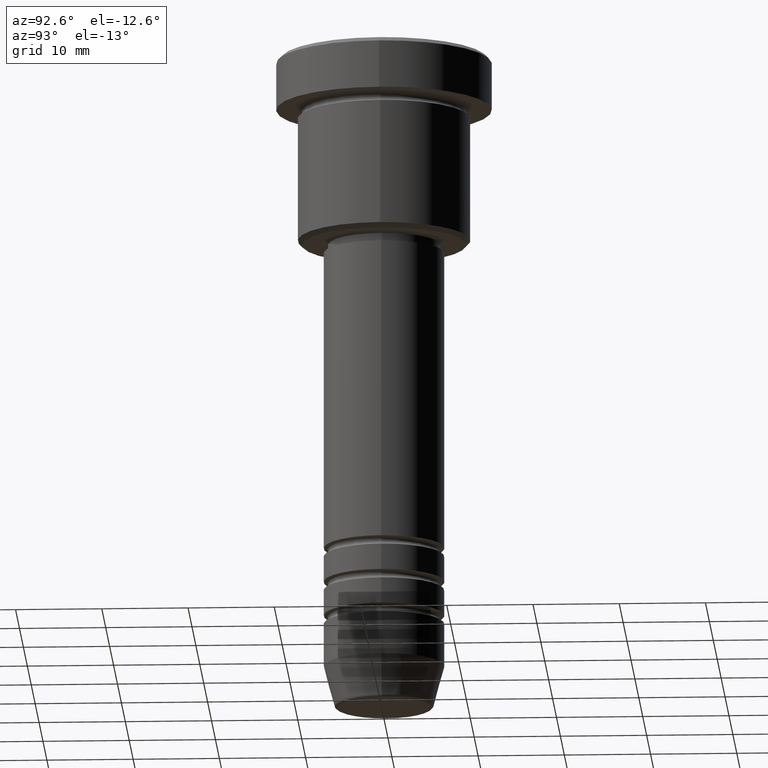
[diagram: clean part render]
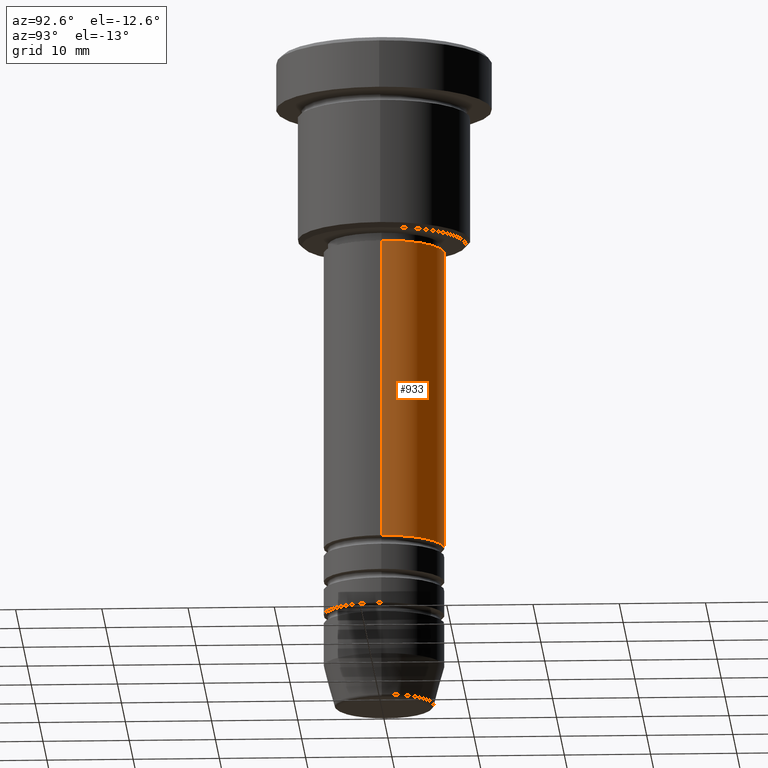
[diagram: same view with one face highlighted and labeled with its STEP entity id]
A machine part, auxiliary view. The second image highlights one B-rep face of the part: STEP entity #933.
In plain terms, the highlighted cylindrical surface (partial cylindrical patch) has radius 7 mm, axis along (-0, -0, 1).
Its self-contained STEP definition (entity closure, byte-faithful):
#1 = CARTESIAN_POINT ( 'NONE',  ( 7.000000000000000888, 0.000000000000000000, 0.000000000000000000 ) ) ;
#2 = EDGE_CURVE ( 'NONE', #121, #454, #426, .T. ) ;
#27 = AXIS2_PLACEMENT_3D ( 'NONE', #810, #82, #619 ) ;
#75 = DIRECTION ( 'NONE',  ( -0.000000000000000000, -0.000000000000000000, 1.000000000000000000 ) ) ;
#79 = DIRECTION ( 'NONE',  ( -0.000000000000000000, -0.000000000000000000, 1.000000000000000000 ) ) ;
#82 = DIRECTION ( 'NONE',  ( -0.000000000000000000, -0.000000000000000000, 1.000000000000000000 ) ) ;
#121 = VERTEX_POINT ( 'NONE', #891 ) ;
#127 = VERTEX_POINT ( 'NONE', #418 ) ;
#138 = CARTESIAN_POINT ( 'NONE',  ( -7.000000000000000888, 8.572527594031474176E-16, -23.00000000000002842 ) ) ;
#225 = ORIENTED_EDGE ( 'NONE', *, *, #2, .F. ) ;
#249 = CYLINDRICAL_SURFACE ( 'NONE', #27, 7.000000000000000888 ) ;
#282 = CARTESIAN_POINT ( 'NONE',  ( 7.000000000000000888, 0.000000000000000000, -57.99999999999990052 ) ) ;
#359 = DIRECTION ( 'NONE',  ( 1.000000000000000000, 0.000000000000000000, 0.000000000000000000 ) ) ;
#365 = CARTESIAN_POINT ( 'NONE',  ( -7.000000000000000888, 8.572527594031474176E-16, 0.000000000000000000 ) ) ;
#418 = CARTESIAN_POINT ( 'NONE',  ( -7.000000000000000888, 8.572527594031474176E-16, -57.99999999999990052 ) ) ;
#426 = CIRCLE ( 'NONE', #653, 7.000000000000000888 ) ;
#454 = VERTEX_POINT ( 'NONE', #138 ) ;
#471 = ORIENTED_EDGE ( 'NONE', *, *, #912, .T. ) ;
#574 = ORIENTED_EDGE ( 'NONE', *, *, #872, .T. ) ;
#619 = DIRECTION ( 'NONE',  ( 1.000000000000000000, 0.000000000000000000, 0.000000000000000000 ) ) ;
#648 = ORIENTED_EDGE ( 'NONE', *, *, #1034, .F. ) ;
#653 = AXIS2_PLACEMENT_3D ( 'NONE', #796, #79, #1072 ) ;
#697 = VECTOR ( 'NONE', #816, 1000.000000000000000 ) ;
#796 = CARTESIAN_POINT ( 'NONE',  ( 0.000000000000000000, 0.000000000000000000, -23.00000000000002842 ) ) ;
#810 = CARTESIAN_POINT ( 'NONE',  ( 0.000000000000000000, 0.000000000000000000, 0.000000000000000000 ) ) ;
#816 = DIRECTION ( 'NONE',  ( -0.000000000000000000, -0.000000000000000000, 1.000000000000000000 ) ) ;
#858 = EDGE_LOOP ( 'NONE', ( #471, #574, #225, #648 ) ) ;
#872 = EDGE_CURVE ( 'NONE', #127, #454, #1087, .T. ) ;
#891 = CARTESIAN_POINT ( 'NONE',  ( 7.000000000000000888, 0.000000000000000000, -23.00000000000002842 ) ) ;
#912 = EDGE_CURVE ( 'NONE', #1047, #127, #1071, .T. ) ;
#933 = ADVANCED_FACE ( 'NONE', ( #1066 ), #249, .T. ) ;
#950 = LINE ( 'NONE', #1, #993 ) ;
#982 = CARTESIAN_POINT ( 'NONE',  ( 0.000000000000000000, 0.000000000000000000, -57.99999999999990052 ) ) ;
#993 = VECTOR ( 'NONE', #1023, 1000.000000000000000 ) ;
#1023 = DIRECTION ( 'NONE',  ( -0.000000000000000000, -0.000000000000000000, 1.000000000000000000 ) ) ;
#1034 = EDGE_CURVE ( 'NONE', #1047, #121, #950, .T. ) ;
#1047 = VERTEX_POINT ( 'NONE', #282 ) ;
#1066 = FACE_OUTER_BOUND ( 'NONE', #858, .T. ) ;
#1071 = CIRCLE ( 'NONE', #1092, 7.000000000000000888 ) ;
#1072 = DIRECTION ( 'NONE',  ( 1.000000000000000000, 0.000000000000000000, 0.000000000000000000 ) ) ;
#1087 = LINE ( 'NONE', #365, #697 ) ;
#1092 = AXIS2_PLACEMENT_3D ( 'NONE', #982, #75, #359 ) ;